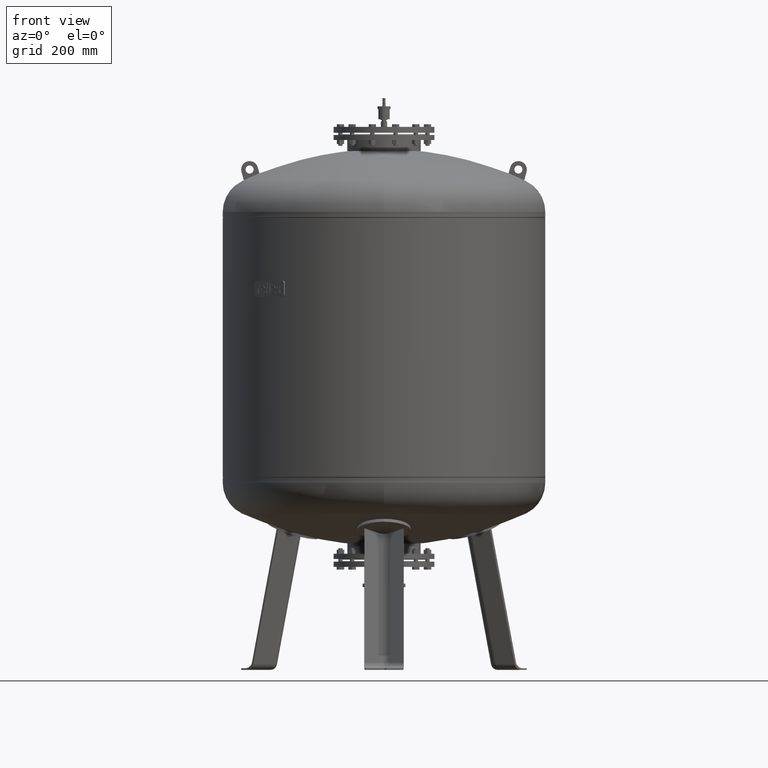
[diagram: clean part render]
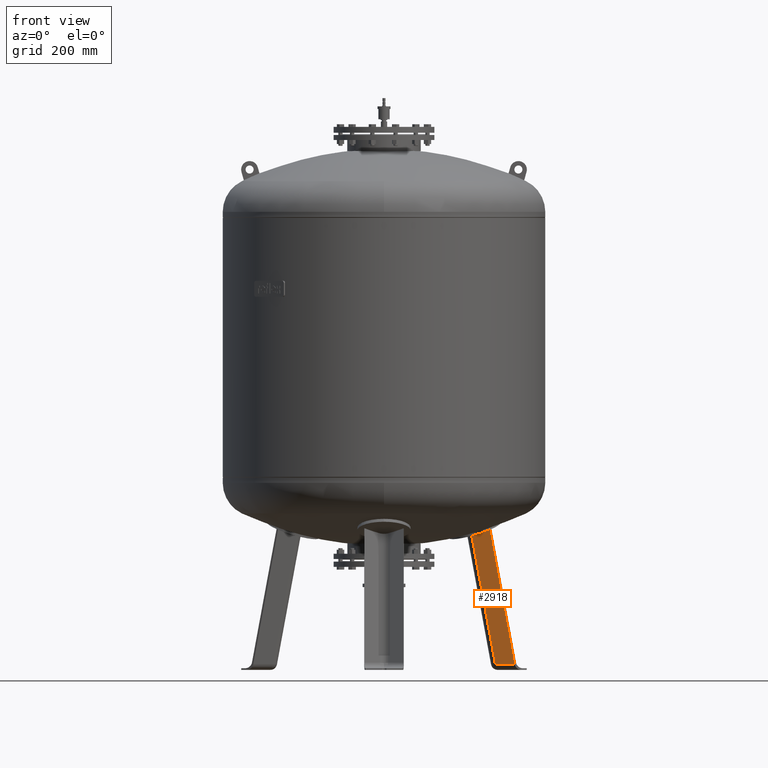
[diagram: same view with one face highlighted and labeled with its STEP entity id]
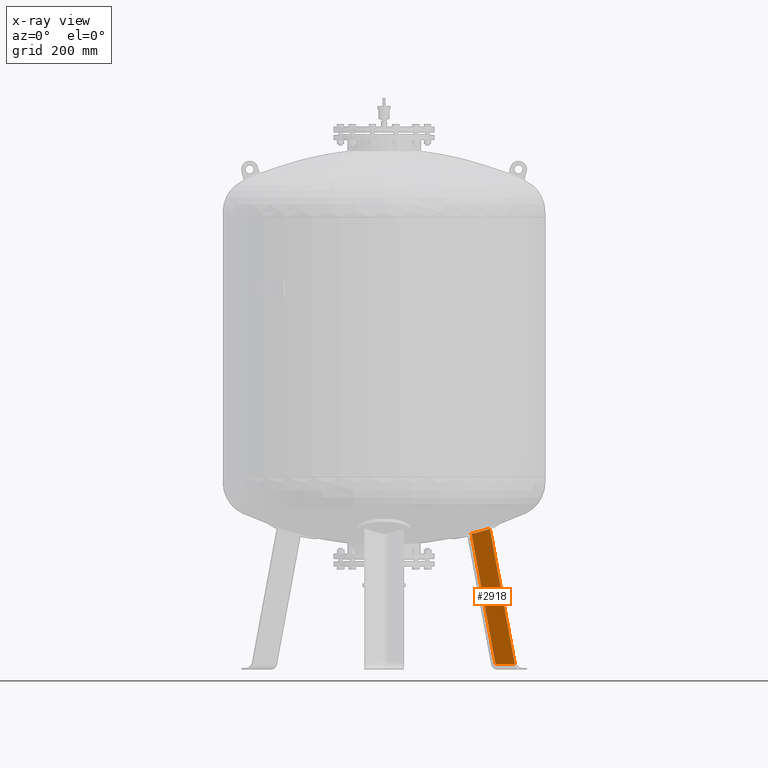
[diagram: x-ray of the same camera — body ghosted, the highlighted face saturated]
A machine part, front view. The second image highlights one B-rep face of the part: STEP entity #2918.
The next image is the same camera in x-ray: the body ghosted, the highlighted face saturated — about 0% of this face is hidden behind the body in this view.
In plain terms, the highlighted planar face has unit normal (-0.3243, -0.9325, -0.1588).
Its self-contained STEP definition (entity closure, byte-faithful):
#2243=CARTESIAN_POINT('',(486.243118968847450,195.862106057392200,21.029948423057292));
#2244=VERTEX_POINT('',#2243);
#2252=CARTESIAN_POINT('',(414.642004680756830,220.760904562808090,21.029948423057292));
#2253=VERTEX_POINT('',#2252);
#2254=CARTESIAN_POINT('',(486.243118968847450,195.862106057392200,21.029948423057292));
#2255=DIRECTION('',(-0.944521094592691,0.328450760190054,0.0));
#2256=VECTOR('',#2255,75.806792138366575);
#2257=LINE('',#2254,#2256);
#2258=EDGE_CURVE('',#2244,#2253,#2257,.T.);
#2713=CARTESIAN_POINT('',(325.378596878368800,169.224652039316080,505.947959126467590));
#2714=VERTEX_POINT('',#2713);
#2744=CARTESIAN_POINT('',(393.596570269069160,142.372596226085530,524.326665410275270));
#2745=VERTEX_POINT('',#2744);
#2746=CARTESIAN_POINT('',(75.381030288212628,91.110193958312436,1475.169845689218200));
#2747=DIRECTION('',(0.324282864533177,0.932535537409926,0.158802063077708));
#2748=DIRECTION('',(0.180056805991956,0.103955845408880,-0.978147600733805));
#2749=AXIS2_PLACEMENT_3D('',#2746,#2747,#2748);
#2750=CIRCLE('',#2749,1003.987906926445600);
#2751=EDGE_CURVE('',#2745,#2714,#2750,.T.);
#2889=CARTESIAN_POINT('',(486.243118968847450,195.862106057392200,21.029948423057292));
#2890=DIRECTION('',(-0.180056805991956,-0.103955845408880,0.978147600733806));
#2891=VECTOR('',#2890,514.540665038328710);
#2892=LINE('',#2889,#2891);
#2893=EDGE_CURVE('',#2244,#2745,#2892,.T.);
#2902=CARTESIAN_POINT('',(494.077027787752740,200.385015422794170,-21.527282742766886));
#2903=DIRECTION('',(-0.324282864533177,-0.932535537409926,-0.158802063077709));
#2904=DIRECTION('',(0.180056805991956,0.103955845408880,-0.978147600733806));
#2905=AXIS2_PLACEMENT_3D('',#2902,#2903,#2904);
#2906=PLANE('',#2905);
#2907=ORIENTED_EDGE('',*,*,#2751,.T.);
#2908=CARTESIAN_POINT('',(414.642004680756830,220.760904562808090,21.029948423057292));
#2909=DIRECTION('',(-0.180056805991956,-0.103955845408880,0.978147600733806));
#2910=VECTOR('',#2909,495.751367523291150);
#2911=LINE('',#2908,#2910);
#2912=EDGE_CURVE('',#2253,#2714,#2911,.T.);
#2913=ORIENTED_EDGE('',*,*,#2912,.F.);
#2914=ORIENTED_EDGE('',*,*,#2258,.F.);
#2915=ORIENTED_EDGE('',*,*,#2893,.T.);
#2916=EDGE_LOOP('',(#2907,#2913,#2914,#2915));
#2917=FACE_OUTER_BOUND('',#2916,.T.);
#2918=ADVANCED_FACE('',(#2917),#2906,.T.);